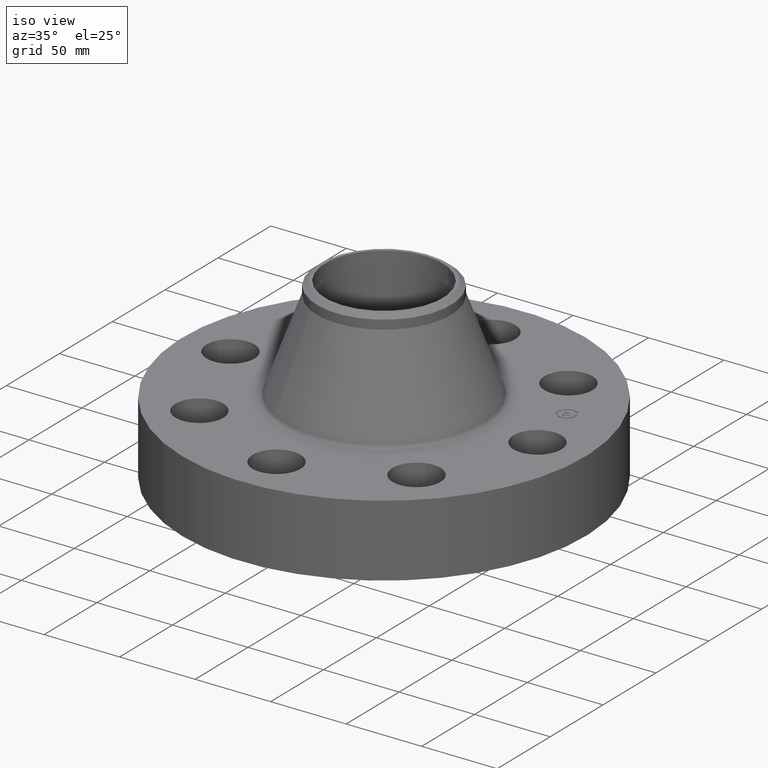
[diagram: clean part render]
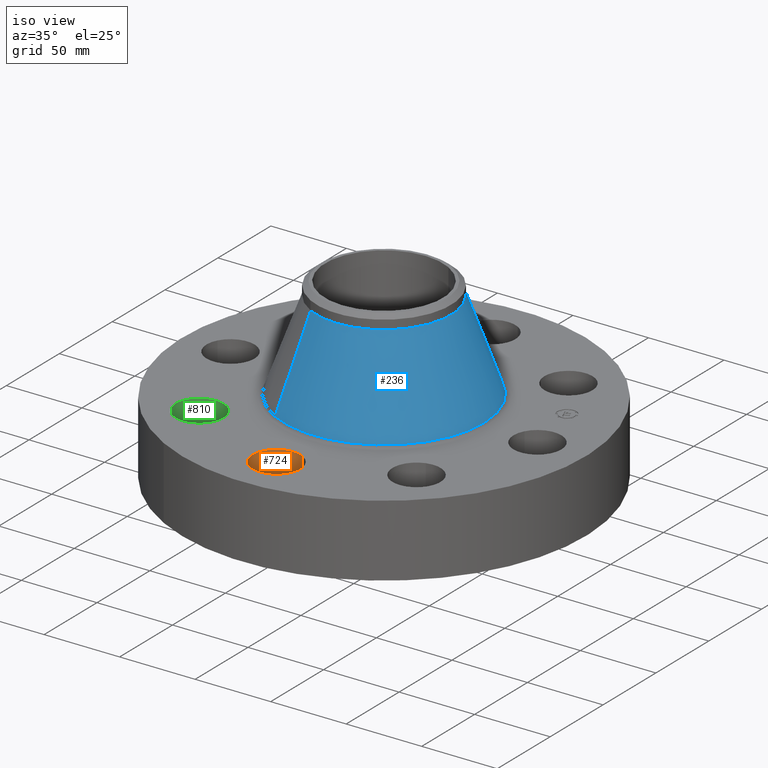
[diagram: same view with three faces highlighted in distinct colors, each labeled with its STEP entity id]
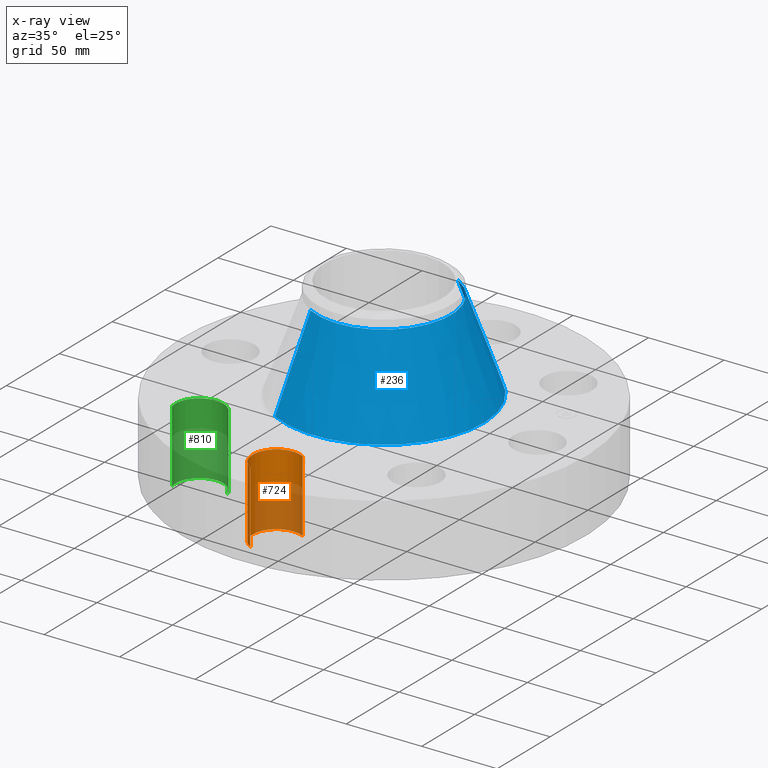
[diagram: x-ray of the same camera — body ghosted, the three highlighted faces saturated]
A machine part, iso view with three faces highlighted in distinct colors.
The next image is the same camera in x-ray (body ghosted, the three faces saturated) — at least one of them is partly hidden behind the body in this view.
Their STEP definitions:

[orange] entity #724 — the highlighted cylindrical surface (edge-blend (fillet) strip) has radius 15.875 mm, axis along (0, -0, -1).
#541=AXIS2_PLACEMENT_3D('Circle Axis2P3D',#539,#540,$) ;
#685=AXIS2_PLACEMENT_3D('Cylinder Axis2P3D',#682,#683,#684) ;
#715=AXIS2_PLACEMENT_3D('Circle Axis2P3D',#713,#714,$) ;
#534=CARTESIAN_POINT('Vertex',(0.299640961629,-3.45151089883,0.)) ;
#536=CARTESIAN_POINT('Vertex',(-0.299640961629,-4.5484891012,0.)) ;
#539=CARTESIAN_POINT('Axis2P3D Location',(-3.49676543189E-016,-4.00000000002,0.)) ;
#682=CARTESIAN_POINT('Axis2P3D Location',(-3.14553109272E-016,-4.00000000002,1.87606299213)) ;
#687=CARTESIAN_POINT('Line Origine',(0.299640961629,-3.45151089883,0.940000000004)) ;
#691=CARTESIAN_POINT('Vertex',(0.299640961629,-3.45151089883,1.88000000001)) ;
#694=CARTESIAN_POINT('Line Origine',(-0.299640961629,-4.5484891012,0.940000000004)) ;
#698=CARTESIAN_POINT('Vertex',(-0.299640961629,-4.5484891012,1.88000000001)) ;
#713=CARTESIAN_POINT('Axis2P3D Location',(-3.14553109272E-016,-4.00000000002,1.88000000001)) ;
#540=DIRECTION('Axis2P3D Direction',(0.,0.,-0.0393700787402)) ;
#683=DIRECTION('Axis2P3D Direction',(0.,-0.,-0.0393700787402)) ;
#684=DIRECTION('Axis2P3D XDirection',(-0.0188750212049,-0.0345504945626,0.)) ;
#688=DIRECTION('Vector Direction',(0.,0.,-0.0393700787402)) ;
#695=DIRECTION('Vector Direction',(0.,0.,-0.0393700787402)) ;
#714=DIRECTION('Axis2P3D Direction',(0.,-0.,-0.0393700787402)) ;
#689=VECTOR('Line Direction',#688,0.0393700787402) ;
#696=VECTOR('Line Direction',#695,0.0393700787402) ;
#719=ORIENTED_EDGE('',*,*,#700,.F.) ;
#720=ORIENTED_EDGE('',*,*,#543,.T.) ;
#721=ORIENTED_EDGE('',*,*,#693,.T.) ;
#722=ORIENTED_EDGE('',*,*,#717,.F.) ;
#724=ADVANCED_FACE('PartBody',(#723),#686,.F.) ;
#542=CIRCLE('generated circle',#541,0.625000000003) ;
#716=CIRCLE('generated circle',#715,0.625000000003) ;
#686=CYLINDRICAL_SURFACE('generated cylinder',#685,0.625000000003) ;
#543=EDGE_CURVE('',#537,#535,#542,.T.) ;
#693=EDGE_CURVE('',#535,#692,#690,.F.) ;
#700=EDGE_CURVE('',#537,#699,#697,.F.) ;
#717=EDGE_CURVE('',#699,#692,#716,.T.) ;
#718=EDGE_LOOP('',(#719,#720,#721,#722)) ;
#723=FACE_OUTER_BOUND('',#718,.T.) ;
#690=LINE('Line',#687,#689) ;
#697=LINE('Line',#694,#696) ;
#535=VERTEX_POINT('',#534) ;
#537=VERTEX_POINT('',#536) ;
#692=VERTEX_POINT('',#691) ;
#699=VERTEX_POINT('',#698) ;

[blue] entity #236 — the highlighted conical surface has half-angle 20.043 deg.
#172=AXIS2_PLACEMENT_3D('Circle Axis2P3D',#170,#171,$) ;
#209=AXIS2_PLACEMENT_3D('Cone Axis2P3D',#206,#207,#208) ;
#220=AXIS2_PLACEMENT_3D('Circle Axis2P3D',#218,#219,$) ;
#167=CARTESIAN_POINT('Vertex',(1.24469687415,2.27840234539,1.95887320527)) ;
#170=CARTESIAN_POINT('Axis2P3D Location',(0.,0.,1.95887320527)) ;
#174=CARTESIAN_POINT('Vertex',(-1.24469687415,-2.27840234539,1.95887320527)) ;
#206=CARTESIAN_POINT('Axis2P3D Location',(0.,0.,4.27845634605)) ;
#211=CARTESIAN_POINT('Line Origine',(1.04184578336,1.90708591435,3.11866477566)) ;
#215=CARTESIAN_POINT('Vertex',(0.838994692561,1.53576948331,4.27845634605)) ;
#218=CARTESIAN_POINT('Axis2P3D Location',(0.,0.,4.27845634605)) ;
#222=CARTESIAN_POINT('Vertex',(-0.838994692561,-1.53576948331,4.27845634605)) ;
#225=CARTESIAN_POINT('Line Origine',(-1.04184578336,-1.90708591435,3.11866477566)) ;
#171=DIRECTION('Axis2P3D Direction',(0.,0.,-0.0393700787402)) ;
#207=DIRECTION('Axis2P3D Direction',(0.,0.,-0.0393700787402)) ;
#208=DIRECTION('Axis2P3D XDirection',(-0.0188750212049,-0.0345504945626,0.)) ;
#212=DIRECTION('Vector Direction',(0.00646890935712,0.0118412591511,-0.0369856849802)) ;
#219=DIRECTION('Axis2P3D Direction',(0.,0.,-0.0393700787402)) ;
#226=DIRECTION('Vector Direction',(-0.00646890935712,-0.0118412591511,-0.0369856849802)) ;
#213=VECTOR('Line Direction',#212,0.0393700787402) ;
#227=VECTOR('Line Direction',#226,0.0393700787402) ;
#231=ORIENTED_EDGE('',*,*,#176,.F.) ;
#232=ORIENTED_EDGE('',*,*,#217,.T.) ;
#233=ORIENTED_EDGE('',*,*,#224,.T.) ;
#234=ORIENTED_EDGE('',*,*,#229,.F.) ;
#236=ADVANCED_FACE('PartBody',(#235),#210,.T.) ;
#173=CIRCLE('generated circle',#172,2.59622563657) ;
#221=CIRCLE('generated circle',#220,1.75000000001) ;
#210=CONICAL_SURFACE('Cone',#209,1.75000000001,0.349814224944) ;
#176=EDGE_CURVE('',#168,#175,#173,.T.) ;
#217=EDGE_CURVE('',#168,#216,#214,.F.) ;
#224=EDGE_CURVE('',#216,#223,#221,.T.) ;
#229=EDGE_CURVE('',#175,#223,#228,.F.) ;
#230=EDGE_LOOP('',(#231,#232,#233,#234)) ;
#235=FACE_OUTER_BOUND('',#230,.T.) ;
#214=LINE('Line',#211,#213) ;
#228=LINE('Line',#225,#227) ;
#168=VERTEX_POINT('',#167) ;
#175=VERTEX_POINT('',#174) ;
#216=VERTEX_POINT('',#215) ;
#223=VERTEX_POINT('',#222) ;

[green] entity #810 — the highlighted cylindrical surface (edge-blend (fillet) strip) has radius 15.875 mm, axis along (-0, 0, -1).
#559=AXIS2_PLACEMENT_3D('Circle Axis2P3D',#557,#558,$) ;
#771=AXIS2_PLACEMENT_3D('Cylinder Axis2P3D',#768,#769,#770) ;
#801=AXIS2_PLACEMENT_3D('Circle Axis2P3D',#799,#800,$) ;
#552=CARTESIAN_POINT('Vertex',(-2.22870860601,-2.65246491779,0.)) ;
#554=CARTESIAN_POINT('Vertex',(-3.4281456435,-3.00438933172,0.)) ;
#557=CARTESIAN_POINT('Axis2P3D Location',(-2.82842712476,-2.82842712476,0.)) ;
#768=CARTESIAN_POINT('Axis2P3D Location',(-2.82842712476,-2.82842712476,1.87606299213)) ;
#773=CARTESIAN_POINT('Line Origine',(-2.22870860601,-2.65246491779,0.940000000004)) ;
#777=CARTESIAN_POINT('Vertex',(-2.22870860601,-2.65246491779,1.88000000001)) ;
#780=CARTESIAN_POINT('Line Origine',(-3.4281456435,-3.00438933172,0.940000000004)) ;
#784=CARTESIAN_POINT('Vertex',(-3.4281456435,-3.00438933172,1.88000000001)) ;
#799=CARTESIAN_POINT('Axis2P3D Location',(-2.82842712476,-2.82842712476,1.88000000001)) ;
#558=DIRECTION('Axis2P3D Direction',(0.,0.,-0.0393700787402)) ;
#769=DIRECTION('Axis2P3D Direction',(-0.,0.,-0.0393700787402)) ;
#770=DIRECTION('Axis2P3D XDirection',(-0.0377775444876,-0.0110842335096,0.)) ;
#774=DIRECTION('Vector Direction',(0.,0.,-0.0393700787402)) ;
#781=DIRECTION('Vector Direction',(0.,0.,-0.0393700787402)) ;
#800=DIRECTION('Axis2P3D Direction',(-0.,0.,-0.0393700787402)) ;
#775=VECTOR('Line Direction',#774,0.0393700787402) ;
#782=VECTOR('Line Direction',#781,0.0393700787402) ;
#805=ORIENTED_EDGE('',*,*,#786,.F.) ;
#806=ORIENTED_EDGE('',*,*,#561,.T.) ;
#807=ORIENTED_EDGE('',*,*,#779,.T.) ;
#808=ORIENTED_EDGE('',*,*,#803,.F.) ;
#810=ADVANCED_FACE('PartBody',(#809),#772,.F.) ;
#560=CIRCLE('generated circle',#559,0.625000000002) ;
#802=CIRCLE('generated circle',#801,0.625000000002) ;
#772=CYLINDRICAL_SURFACE('generated cylinder',#771,0.625000000002) ;
#561=EDGE_CURVE('',#555,#553,#560,.T.) ;
#779=EDGE_CURVE('',#553,#778,#776,.F.) ;
#786=EDGE_CURVE('',#555,#785,#783,.F.) ;
#803=EDGE_CURVE('',#785,#778,#802,.T.) ;
#804=EDGE_LOOP('',(#805,#806,#807,#808)) ;
#809=FACE_OUTER_BOUND('',#804,.T.) ;
#776=LINE('Line',#773,#775) ;
#783=LINE('Line',#780,#782) ;
#553=VERTEX_POINT('',#552) ;
#555=VERTEX_POINT('',#554) ;
#778=VERTEX_POINT('',#777) ;
#785=VERTEX_POINT('',#784) ;